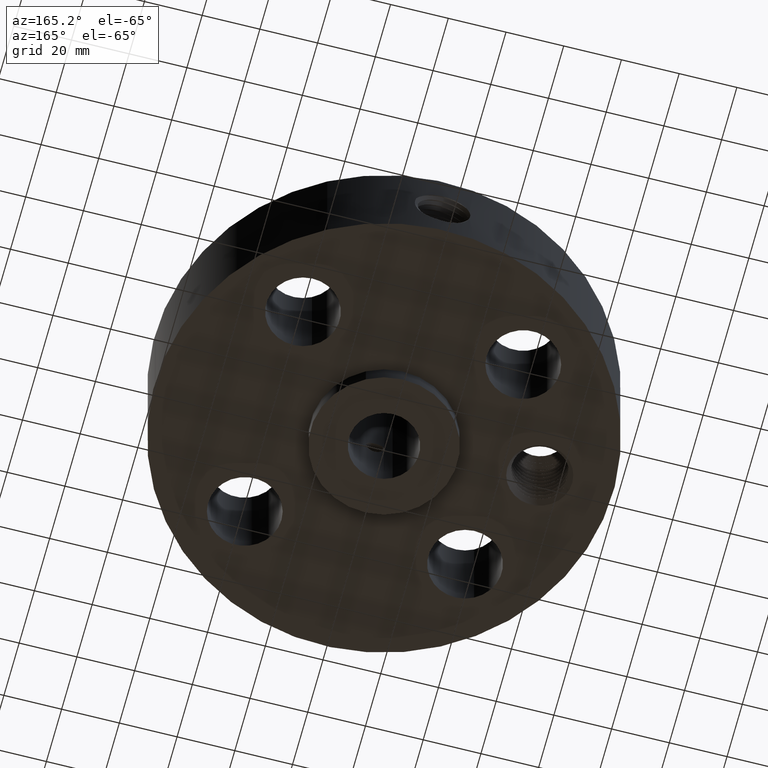
[diagram: clean part render]
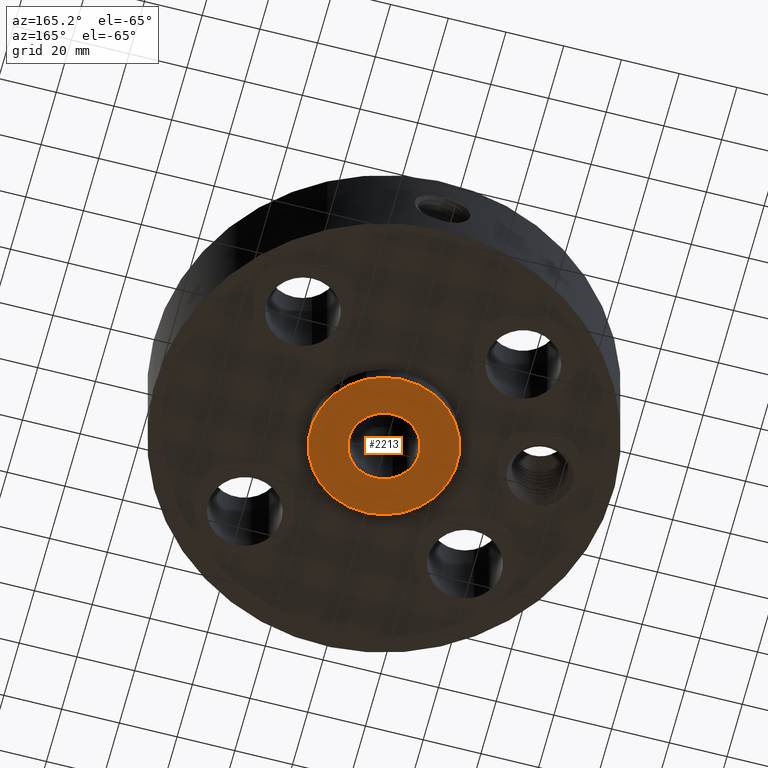
[diagram: same view with one face highlighted and labeled with its STEP entity id]
A machine part, auxiliary view. The second image highlights one B-rep face of the part: STEP entity #2213.
In plain terms, the highlighted planar face has unit normal (0, 0, -1).
Its self-contained STEP definition (entity closure, byte-faithful):
#1150=AXIS2_PLACEMENT_3D('Circle Axis2P3D',#1148,#1149,$) ;
#1176=AXIS2_PLACEMENT_3D('Circle Axis2P3D',#1174,#1175,$) ;
#2189=AXIS2_PLACEMENT_3D('Plane Axis2P3D',#2186,#2187,#2188) ;
#2197=AXIS2_PLACEMENT_3D('Circle Axis2P3D',#2195,#2196,$) ;
#2206=AXIS2_PLACEMENT_3D('Circle Axis2P3D',#2204,#2205,$) ;
#1148=CARTESIAN_POINT('Axis2P3D Location',(0.,0.,0.)) ;
#1152=CARTESIAN_POINT('Vertex',(0.479425538606,0.877582561894,-2.79741234551E-016)) ;
#1154=CARTESIAN_POINT('Vertex',(-0.479425538606,-0.877582561894,-2.79741234551E-016)) ;
#1174=CARTESIAN_POINT('Axis2P3D Location',(0.,0.,0.)) ;
#2186=CARTESIAN_POINT('Axis2P3D Location',(0.,0.478500000002,0.)) ;
#2195=CARTESIAN_POINT('Axis2P3D Location',(0.,0.,0.)) ;
#2199=CARTESIAN_POINT('Vertex',(0.229405120223,0.419923255866,-2.79741234551E-015)) ;
#2201=CARTESIAN_POINT('Vertex',(-0.229405120223,-0.419923255866,-2.79741234551E-015)) ;
#2204=CARTESIAN_POINT('Axis2P3D Location',(0.,0.,0.)) ;
#1149=DIRECTION('Axis2P3D Direction',(0.,0.,-0.0393700787402)) ;
#1175=DIRECTION('Axis2P3D Direction',(0.,0.,-0.0393700787402)) ;
#2187=DIRECTION('Axis2P3D Direction',(0.,0.,-0.0393700787402)) ;
#2188=DIRECTION('Axis2P3D XDirection',(0.0393700787402,0.,0.)) ;
#2196=DIRECTION('Axis2P3D Direction',(0.,0.,-0.0393700787402)) ;
#2205=DIRECTION('Axis2P3D Direction',(0.,0.,-0.0393700787402)) ;
#2192=ORIENTED_EDGE('',*,*,#1178,.T.) ;
#2193=ORIENTED_EDGE('',*,*,#1156,.T.) ;
#2210=ORIENTED_EDGE('',*,*,#2203,.F.) ;
#2211=ORIENTED_EDGE('',*,*,#2208,.F.) ;
#2212=FACE_BOUND('',#2209,.T.) ;
#2213=ADVANCED_FACE('PartBody',(#2194,#2212),#2190,.T.) ;
#1151=CIRCLE('generated circle',#1150,1.) ;
#1177=CIRCLE('generated circle',#1176,1.) ;
#2198=CIRCLE('generated circle',#2197,0.478500000002) ;
#2207=CIRCLE('generated circle',#2206,0.478500000002) ;
#1156=EDGE_CURVE('',#1153,#1155,#1151,.T.) ;
#1178=EDGE_CURVE('',#1155,#1153,#1177,.T.) ;
#2203=EDGE_CURVE('',#2200,#2202,#2198,.T.) ;
#2208=EDGE_CURVE('',#2202,#2200,#2207,.T.) ;
#2191=EDGE_LOOP('',(#2192,#2193)) ;
#2209=EDGE_LOOP('',(#2210,#2211)) ;
#2194=FACE_OUTER_BOUND('',#2191,.T.) ;
#2190=PLANE('',#2189) ;
#1153=VERTEX_POINT('',#1152) ;
#1155=VERTEX_POINT('',#1154) ;
#2200=VERTEX_POINT('',#2199) ;
#2202=VERTEX_POINT('',#2201) ;